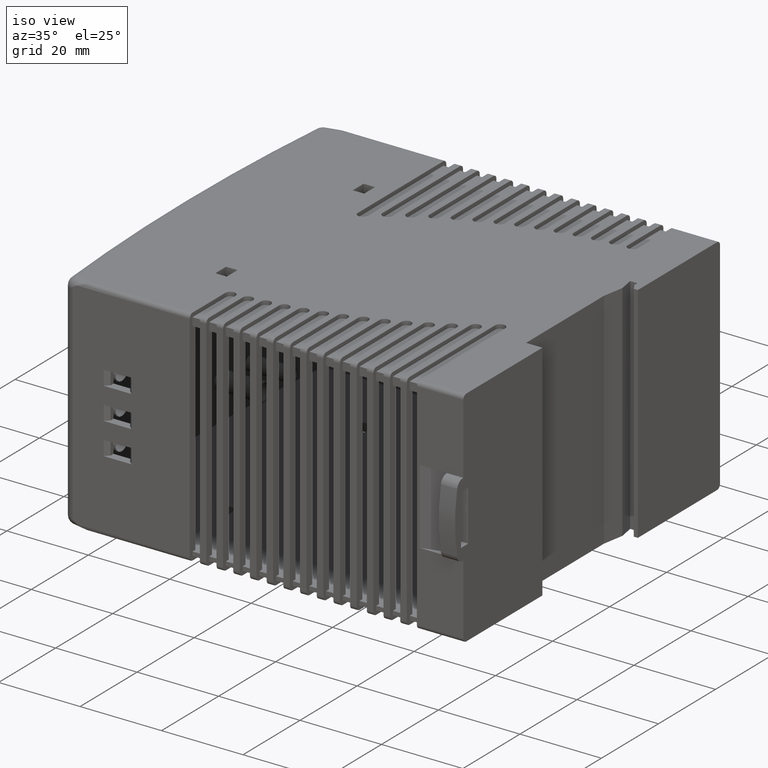
[diagram: clean part render]
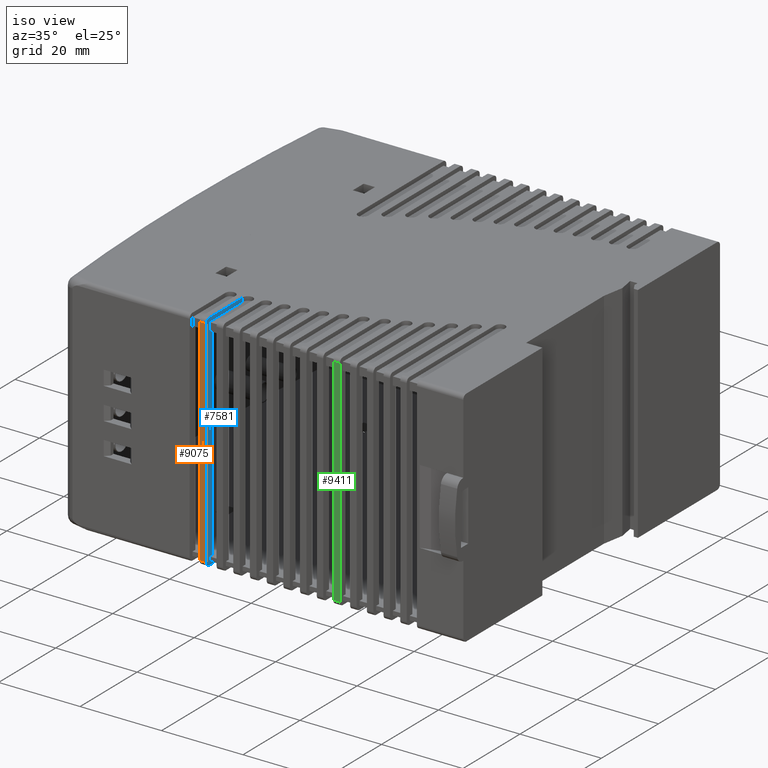
[diagram: same view with three faces highlighted in distinct colors, each labeled with its STEP entity id]
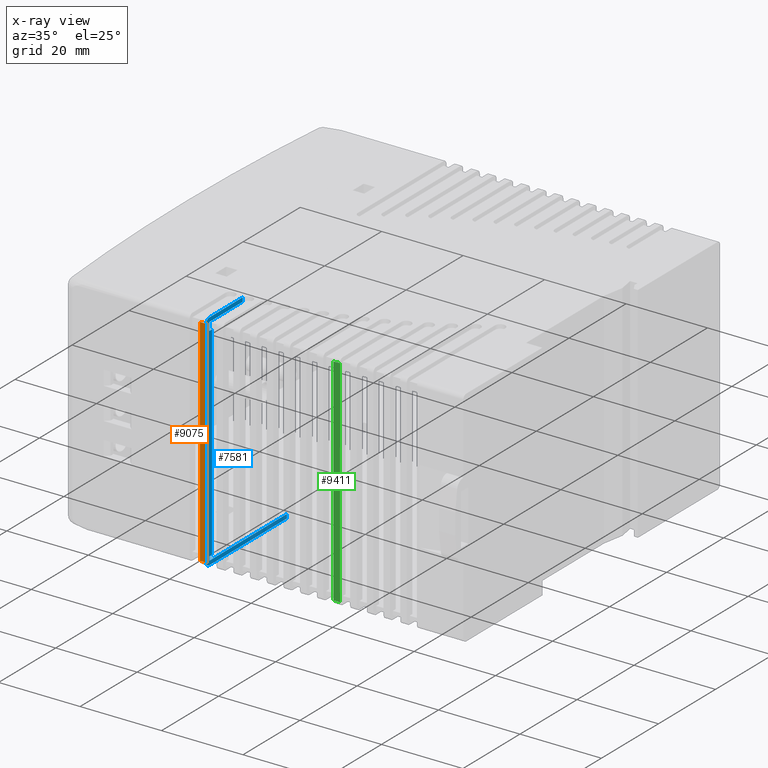
[diagram: x-ray of the same camera — body ghosted, the three highlighted faces saturated]
A machine part, iso view with three faces highlighted in distinct colors.
The next image is the same camera in x-ray (body ghosted, the three faces saturated) — at least one of them is partly hidden behind the body in this view.
Their STEP definitions:

[orange] entity #9075 — the highlighted planar face has unit normal (0, -1, 0).
#7486=CARTESIAN_POINT('',(-16.116063225417427,-14.979895851452934,1.0));
#7487=VERTEX_POINT('',#7486);
#7496=CARTESIAN_POINT('',(-14.516063225417426,-14.979895851452934,1.0));
#7497=VERTEX_POINT('',#7496);
#7505=CARTESIAN_POINT('',(-14.516063225417426,-14.979895851452934,1.0));
#7506=DIRECTION('',(-1.0,0.0,0.0));
#7507=VECTOR('',#7506,1.600000000000001);
#7508=LINE('',#7505,#7507);
#7509=EDGE_CURVE('',#7497,#7487,#7508,.T.);
#7564=CARTESIAN_POINT('',(-14.516063225417426,-14.979895851452934,54.0));
#7565=VERTEX_POINT('',#7564);
#7573=CARTESIAN_POINT('',(-14.516063225417426,-14.979895851452934,1.0));
#7574=DIRECTION('',(0.0,0.0,1.0));
#7575=VECTOR('',#7574,53.0);
#7576=LINE('',#7573,#7575);
#7577=EDGE_CURVE('',#7497,#7565,#7576,.T.);
#9039=CARTESIAN_POINT('',(-16.116063225417427,-14.979895851452934,54.0));
#9040=VERTEX_POINT('',#9039);
#9048=CARTESIAN_POINT('',(-16.116063225417427,-14.979895851452934,54.0));
#9049=DIRECTION('',(1.0,0.0,0.0));
#9050=VECTOR('',#9049,1.600000000000001);
#9051=LINE('',#9048,#9050);
#9052=EDGE_CURVE('',#9040,#7565,#9051,.T.);
#9059=CARTESIAN_POINT('',(48.583936774582568,-14.979895851452925,0.0));
#9060=DIRECTION('',(0.0,-1.0,0.0));
#9061=DIRECTION('',(0.0,0.0,-1.0));
#9062=AXIS2_PLACEMENT_3D('',#9059,#9060,#9061);
#9063=PLANE('',#9062);
#9064=ORIENTED_EDGE('',*,*,#7509,.F.);
#9065=ORIENTED_EDGE('',*,*,#7577,.T.);
#9066=ORIENTED_EDGE('',*,*,#9052,.F.);
#9067=CARTESIAN_POINT('',(-16.116063225417427,-14.979895851452934,54.0));
#9068=DIRECTION('',(0.0,0.0,-1.0));
#9069=VECTOR('',#9068,53.0);
#9070=LINE('',#9067,#9069);
#9071=EDGE_CURVE('',#9040,#7487,#9070,.T.);
#9072=ORIENTED_EDGE('',*,*,#9071,.T.);
#9073=EDGE_LOOP('',(#9064,#9065,#9066,#9072));
#9074=FACE_OUTER_BOUND('',#9073,.T.);
#9075=ADVANCED_FACE('',(#9074),#9063,.T.);

[blue] entity #7581 — the highlighted planar face has unit normal (-1, 0, 0).
#438=CARTESIAN_POINT('',(-14.516063225417408,13.243347989864489,1.0));
#439=VERTEX_POINT('',#438);
#449=CARTESIAN_POINT('',(-14.516063225417408,13.243347989864489,0.0));
#450=VERTEX_POINT('',#449);
#451=CARTESIAN_POINT('',(-14.516063225417408,13.243347989864489,0.0));
#452=DIRECTION('',(0.0,0.0,1.0));
#453=VECTOR('',#452,1.0);
#454=LINE('',#451,#453);
#455=EDGE_CURVE('',#450,#439,#454,.T.);
#480=CARTESIAN_POINT('',(-14.516063225417408,-13.979895851452939,1.0));
#481=VERTEX_POINT('',#480);
#482=CARTESIAN_POINT('',(-14.516063225417408,-13.979895851452939,1.0));
#483=DIRECTION('',(0.0,1.0,0.0));
#484=VECTOR('',#483,27.223243841317426);
#485=LINE('',#482,#484);
#486=EDGE_CURVE('',#481,#439,#485,.T.);
#2261=CARTESIAN_POINT('',(-14.516063225417426,-13.979895851452957,0.0));
#2262=VERTEX_POINT('',#2261);
#2263=CARTESIAN_POINT('',(-14.516063225417408,13.243347989864489,0.0));
#2264=DIRECTION('',(0.0,-1.0,0.0));
#2265=VECTOR('',#2264,27.223243841317448);
#2266=LINE('',#2263,#2265);
#2267=EDGE_CURVE('',#450,#2262,#2266,.T.);
#4111=CARTESIAN_POINT('',(-14.516063225417426,-2.197976155992905,54.0));
#4112=VERTEX_POINT('',#4111);
#4128=CARTESIAN_POINT('',(-14.516063225417426,-2.197976155992905,55.0));
#4129=VERTEX_POINT('',#4128);
#4137=CARTESIAN_POINT('',(-14.516063225417426,-2.197976155992905,55.0));
#4138=DIRECTION('',(0.0,0.0,-1.0));
#4139=VECTOR('',#4138,1.0);
#4140=LINE('',#4137,#4139);
#4141=EDGE_CURVE('',#4129,#4112,#4140,.T.);
#4160=CARTESIAN_POINT('',(-14.516063225417088,-13.979895851452966,54.0));
#4161=VERTEX_POINT('',#4160);
#4162=CARTESIAN_POINT('',(-14.516063225417426,-2.197976155992905,54.0));
#4163=DIRECTION('',(0.0,-1.0,0.0));
#4164=VECTOR('',#4163,11.781919695460061);
#4165=LINE('',#4162,#4164);
#4166=EDGE_CURVE('',#4112,#4161,#4165,.T.);
#4861=CARTESIAN_POINT('',(-14.516063225417417,-13.979895851452957,55.0));
#4862=VERTEX_POINT('',#4861);
#4869=CARTESIAN_POINT('',(-14.516063225417417,-13.979895851452957,55.0));
#4870=DIRECTION('',(0.0,1.0,0.0));
#4871=VECTOR('',#4870,11.781919695460052);
#4872=LINE('',#4869,#4871);
#4873=EDGE_CURVE('',#4862,#4129,#4872,.T.);
#7496=CARTESIAN_POINT('',(-14.516063225417426,-14.979895851452934,1.0));
#7497=VERTEX_POINT('',#7496);
#7498=CARTESIAN_POINT('',(-14.516063225417412,-13.979895851452932,1.0));
#7499=DIRECTION('',(-1.000000000000000,0.0,0.0));
#7500=DIRECTION('',(0.0,-0.707106781186548,-0.707106781186547));
#7501=AXIS2_PLACEMENT_3D('',#7498,#7499,#7500);
#7502=CIRCLE('',#7501,1.0);
#7503=EDGE_CURVE('',#2262,#7497,#7502,.T.);
#7514=CARTESIAN_POINT('',(-14.516063225417424,75.020104148547063,2.0));
#7515=DIRECTION('',(-1.0,0.0,0.0));
#7516=DIRECTION('',(0.0,0.0,1.0));
#7517=AXIS2_PLACEMENT_3D('',#7514,#7515,#7516);
#7518=PLANE('',#7517);
#7519=ORIENTED_EDGE('',*,*,#7503,.F.);
#7520=ORIENTED_EDGE('',*,*,#2267,.F.);
#7521=ORIENTED_EDGE('',*,*,#455,.T.);
#7522=ORIENTED_EDGE('',*,*,#486,.F.);
#7523=CARTESIAN_POINT('',(-14.516063225417426,-13.979895851452957,2.0));
#7524=VERTEX_POINT('',#7523);
#7525=CARTESIAN_POINT('',(-14.516063225417408,-13.979895851452939,1.0));
#7526=DIRECTION('',(0.0,0.0,1.0));
#7527=VECTOR('',#7526,1.0);
#7528=LINE('',#7525,#7527);
#7529=EDGE_CURVE('',#481,#7524,#7528,.T.);
#7530=ORIENTED_EDGE('',*,*,#7529,.T.);
#7531=CARTESIAN_POINT('',(-14.516063225417415,-12.979895851452937,2.0));
#7532=VERTEX_POINT('',#7531);
#7533=CARTESIAN_POINT('',(-14.516063225417415,-12.979895851452937,2.0));
#7534=DIRECTION('',(0.0,-1.0,0.0));
#7535=VECTOR('',#7534,1.000000000000020);
#7536=LINE('',#7533,#7535);
#7537=EDGE_CURVE('',#7532,#7524,#7536,.T.);
#7538=ORIENTED_EDGE('',*,*,#7537,.F.);
#7539=CARTESIAN_POINT('',(-14.516063225417406,-12.979895851452937,52.0));
#7540=VERTEX_POINT('',#7539);
#7541=CARTESIAN_POINT('',(-14.516063225417406,-12.979895851452937,52.0));
#7542=DIRECTION('',(0.0,0.0,-1.0));
#7543=VECTOR('',#7542,50.0);
#7544=LINE('',#7541,#7543);
#7545=EDGE_CURVE('',#7540,#7532,#7544,.T.);
#7546=ORIENTED_EDGE('',*,*,#7545,.F.);
#7547=CARTESIAN_POINT('',(-14.516063225417417,-13.979895851452957,52.0));
#7548=VERTEX_POINT('',#7547);
#7549=CARTESIAN_POINT('',(-14.516063225417406,-12.979895851452937,52.0));
#7550=DIRECTION('',(0.0,-1.0,0.0));
#7551=VECTOR('',#7550,1.000000000000020);
#7552=LINE('',#7549,#7551);
#7553=EDGE_CURVE('',#7540,#7548,#7552,.T.);
#7554=ORIENTED_EDGE('',*,*,#7553,.T.);
#7555=CARTESIAN_POINT('',(-14.516063225417417,-13.979895851452957,52.0));
#7556=DIRECTION('',(1.643130E-013,-4.440892E-015,1.0));
#7557=VECTOR('',#7556,2.0);
#7558=LINE('',#7555,#7557);
#7559=EDGE_CURVE('',#7548,#4161,#7558,.T.);
#7560=ORIENTED_EDGE('',*,*,#7559,.T.);
#7561=ORIENTED_EDGE('',*,*,#4166,.F.);
#7562=ORIENTED_EDGE('',*,*,#4141,.F.);
#7563=ORIENTED_EDGE('',*,*,#4873,.F.);
#7564=CARTESIAN_POINT('',(-14.516063225417426,-14.979895851452934,54.0));
#7565=VERTEX_POINT('',#7564);
#7566=CARTESIAN_POINT('',(-14.516063225417417,-13.979895851452932,54.0));
#7567=DIRECTION('',(-1.0,0.0,0.0));
#7568=DIRECTION('',(0.0,-0.707106781186549,0.707106781186546));
#7569=AXIS2_PLACEMENT_3D('',#7566,#7567,#7568);
#7570=CIRCLE('',#7569,1.000000000000000);
#7571=EDGE_CURVE('',#7565,#4862,#7570,.T.);
#7572=ORIENTED_EDGE('',*,*,#7571,.F.);
#7573=CARTESIAN_POINT('',(-14.516063225417426,-14.979895851452934,1.0));
#7574=DIRECTION('',(0.0,0.0,1.0));
#7575=VECTOR('',#7574,53.0);
#7576=LINE('',#7573,#7575);
#7577=EDGE_CURVE('',#7497,#7565,#7576,.T.);
#7578=ORIENTED_EDGE('',*,*,#7577,.F.);
#7579=EDGE_LOOP('',(#7519,#7520,#7521,#7522,#7530,#7538,#7546,#7554,#7560,#7561,#7562,#7563,#7572,#7578));
#7580=FACE_OUTER_BOUND('',#7579,.T.);
#7581=ADVANCED_FACE('',(#7580),#7518,.F.);

[green] entity #9411 — the highlighted planar face has unit normal (0, -1, 0).
#8294=CARTESIAN_POINT('',(16.683936774582577,-14.979895851452929,1.0));
#8295=VERTEX_POINT('',#8294);
#8304=CARTESIAN_POINT('',(18.283936774582578,-14.979895851452929,1.0));
#8305=VERTEX_POINT('',#8304);
#8313=CARTESIAN_POINT('',(18.283936774582578,-14.979895851452929,1.0));
#8314=DIRECTION('',(-1.0,0.0,0.0));
#8315=VECTOR('',#8314,1.600000000000001);
#8316=LINE('',#8313,#8315);
#8317=EDGE_CURVE('',#8305,#8295,#8316,.T.);
#8372=CARTESIAN_POINT('',(18.283936774582578,-14.979895851452929,54.0));
#8373=VERTEX_POINT('',#8372);
#8381=CARTESIAN_POINT('',(18.283936774582578,-14.979895851452929,1.0));
#8382=DIRECTION('',(0.0,0.0,1.0));
#8383=VECTOR('',#8382,53.0);
#8384=LINE('',#8381,#8383);
#8385=EDGE_CURVE('',#8305,#8373,#8384,.T.);
#9375=CARTESIAN_POINT('',(16.683936774582577,-14.979895851452929,54.0));
#9376=VERTEX_POINT('',#9375);
#9384=CARTESIAN_POINT('',(16.683936774582577,-14.979895851452929,54.0));
#9385=DIRECTION('',(1.0,0.0,0.0));
#9386=VECTOR('',#9385,1.600000000000001);
#9387=LINE('',#9384,#9386);
#9388=EDGE_CURVE('',#9376,#8373,#9387,.T.);
#9395=CARTESIAN_POINT('',(48.583936774582568,-14.979895851452925,0.0));
#9396=DIRECTION('',(0.0,-1.0,0.0));
#9397=DIRECTION('',(0.0,0.0,-1.0));
#9398=AXIS2_PLACEMENT_3D('',#9395,#9396,#9397);
#9399=PLANE('',#9398);
#9400=ORIENTED_EDGE('',*,*,#8317,.F.);
#9401=ORIENTED_EDGE('',*,*,#8385,.T.);
#9402=ORIENTED_EDGE('',*,*,#9388,.F.);
#9403=CARTESIAN_POINT('',(16.683936774582577,-14.979895851452929,54.0));
#9404=DIRECTION('',(0.0,0.0,-1.0));
#9405=VECTOR('',#9404,53.0);
#9406=LINE('',#9403,#9405);
#9407=EDGE_CURVE('',#9376,#8295,#9406,.T.);
#9408=ORIENTED_EDGE('',*,*,#9407,.T.);
#9409=EDGE_LOOP('',(#9400,#9401,#9402,#9408));
#9410=FACE_OUTER_BOUND('',#9409,.T.);
#9411=ADVANCED_FACE('',(#9410),#9399,.T.);